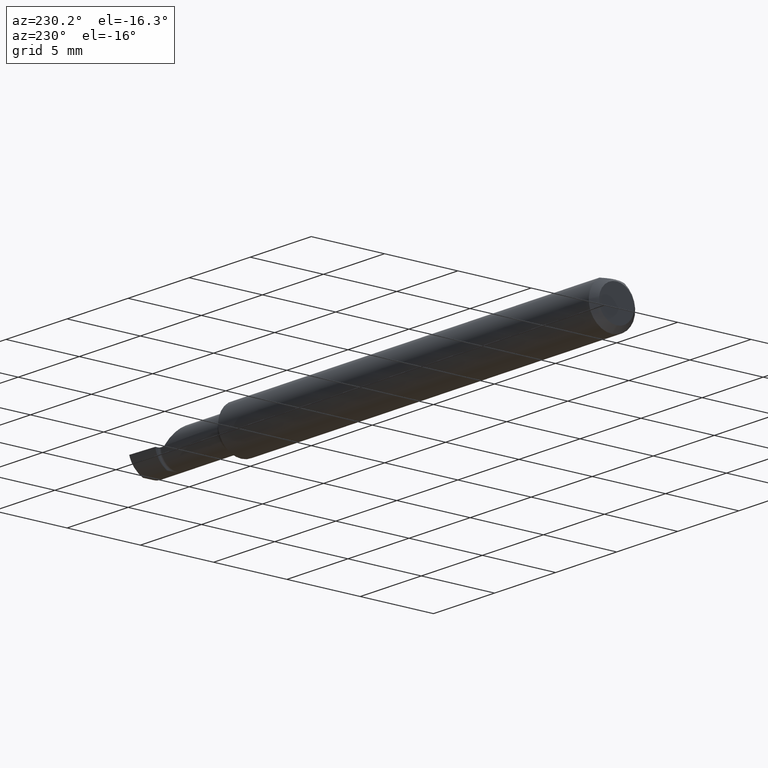
[diagram: clean part render]
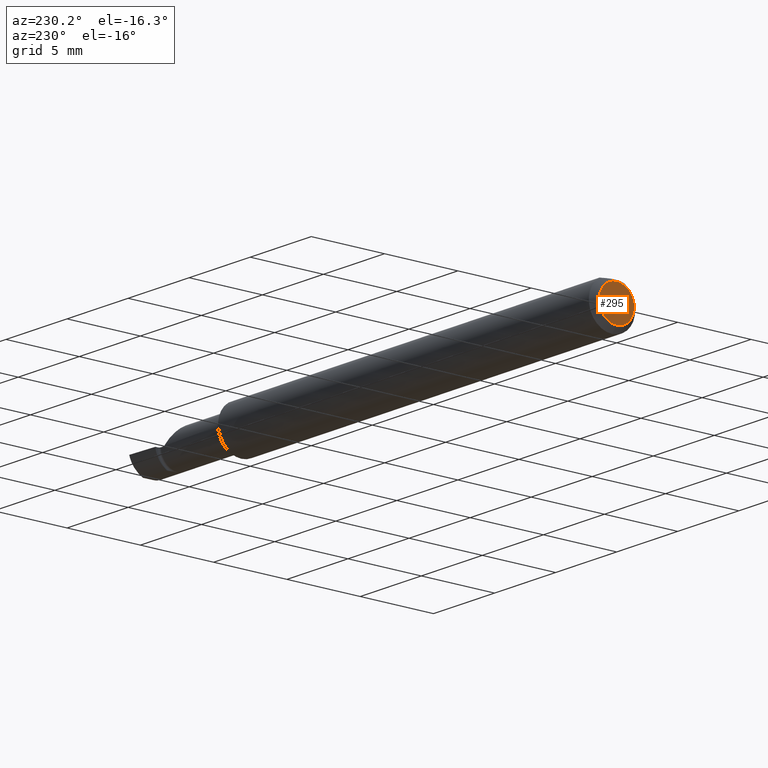
[diagram: same view with one face highlighted and labeled with its STEP entity id]
A machine part, auxiliary view. The second image highlights one B-rep face of the part: STEP entity #295.
In plain terms, the highlighted planar face has unit normal (1, 0, 0).
Its self-contained STEP definition (entity closure, byte-faithful):
#24 = CARTESIAN_POINT ( 'NONE',  ( 0.000000000000000000, 0.000000000000000000, 0.000000000000000000 ) ) ;
#60 = CIRCLE ( 'NONE', #285, 0.04734999999999860154 ) ;
#88 = VERTEX_POINT ( 'NONE', #579 ) ;
#139 = CARTESIAN_POINT ( 'NONE',  ( 0.000000000000000000, 0.000000000000000000, 0.000000000000000000 ) ) ;
#148 = CARTESIAN_POINT ( 'NONE',  ( 0.000000000000000000, 6.717187693323146747E-18, 0.04734999999999860154 ) ) ;
#193 = AXIS2_PLACEMENT_3D ( 'NONE', #139, #565, #325 ) ;
#208 = FACE_OUTER_BOUND ( 'NONE', #558, .T. ) ;
#214 = CARTESIAN_POINT ( 'NONE',  ( 0.000000000000000000, 0.000000000000000000, 0.000000000000000000 ) ) ;
#227 = DIRECTION ( 'NONE',  ( 0.000000000000000000, 0.000000000000000000, -1.000000000000000000 ) ) ;
#235 = EDGE_CURVE ( 'NONE', #518, #88, #60, .T. ) ;
#275 = AXIS2_PLACEMENT_3D ( 'NONE', #24, #277, #227 ) ;
#277 = DIRECTION ( 'NONE',  ( 1.000000000000000000, 0.000000000000000000, 0.000000000000000000 ) ) ;
#285 = AXIS2_PLACEMENT_3D ( 'NONE', #214, #461, #316 ) ;
#295 = ADVANCED_FACE ( 'NONE', ( #208 ), #544, .F. ) ;
#296 = ORIENTED_EDGE ( 'NONE', *, *, #430, .T. ) ;
#316 = DIRECTION ( 'NONE',  ( 0.000000000000000000, 0.000000000000000000, -1.000000000000000000 ) ) ;
#325 = DIRECTION ( 'NONE',  ( 0.000000000000000000, 0.000000000000000000, -1.000000000000000000 ) ) ;
#401 = CIRCLE ( 'NONE', #193, 0.04734999999999860154 ) ;
#430 = EDGE_CURVE ( 'NONE', #88, #518, #401, .T. ) ;
#461 = DIRECTION ( 'NONE',  ( -1.000000000000000000, -0.000000000000000000, -0.000000000000000000 ) ) ;
#508 = ORIENTED_EDGE ( 'NONE', *, *, #235, .T. ) ;
#518 = VERTEX_POINT ( 'NONE', #148 ) ;
#544 = PLANE ( 'NONE',  #275 ) ;
#558 = EDGE_LOOP ( 'NONE', ( #296, #508 ) ) ;
#565 = DIRECTION ( 'NONE',  ( -1.000000000000000000, -0.000000000000000000, -0.000000000000000000 ) ) ;
#579 = CARTESIAN_POINT ( 'NONE',  ( 0.000000000000000000, 0.000000000000000000, -0.04734999999999860154 ) ) ;